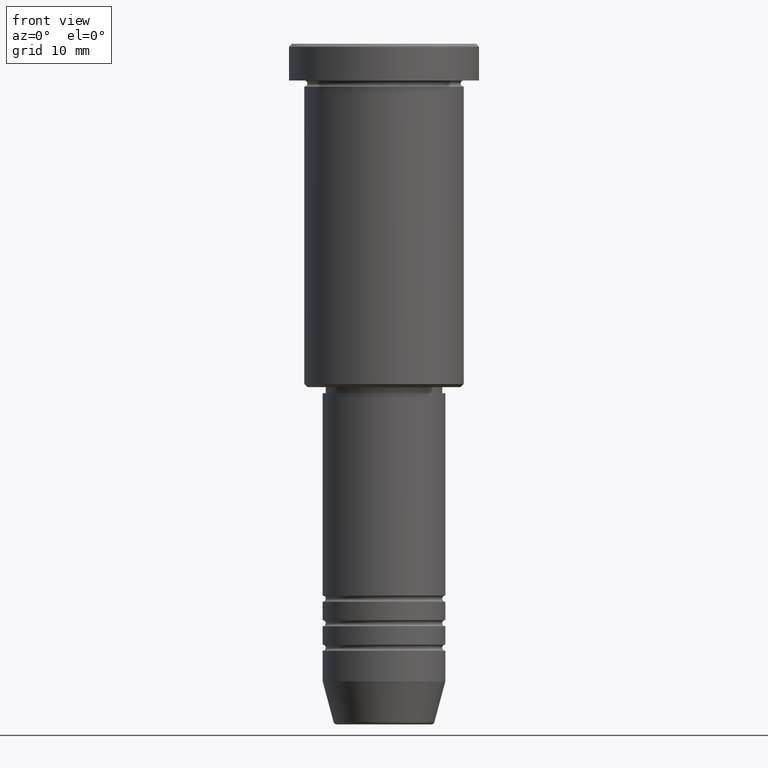
[diagram: clean part render]
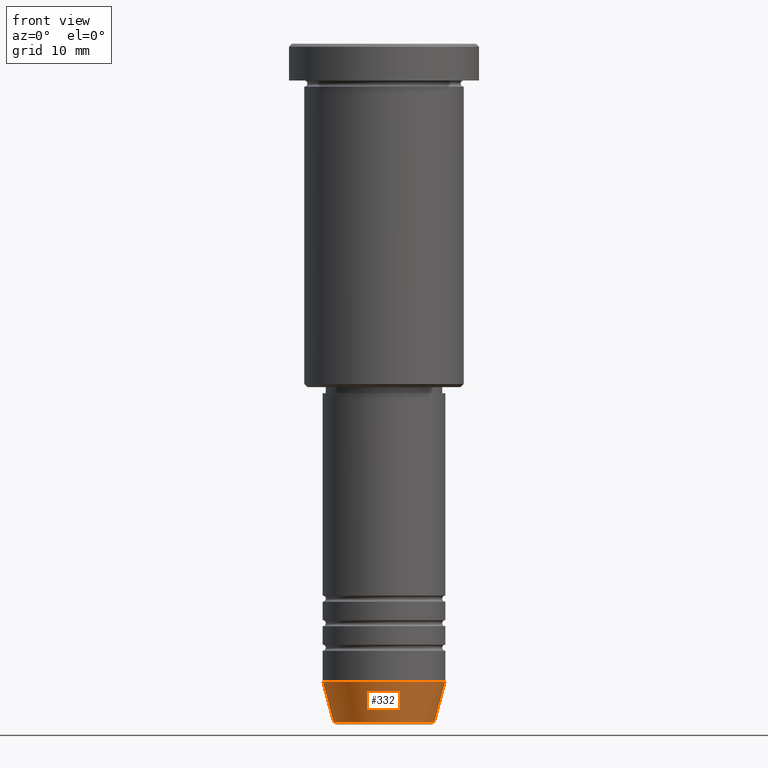
[diagram: same view with one face highlighted and labeled with its STEP entity id]
A machine part, front view. The second image highlights one B-rep face of the part: STEP entity #332.
In plain terms, the highlighted conical surface has half-angle 15 deg.
Its self-contained STEP definition (entity closure, byte-faithful):
#12 = AXIS2_PLACEMENT_3D ( 'NONE', #57, #347, #1088 ) ;
#43 = DIRECTION ( 'NONE',  ( 0.2588190451025210725, 0.000000000000000000, 0.9659258262890680902 ) ) ;
#49 = VERTEX_POINT ( 'NONE', #344 ) ;
#53 = CARTESIAN_POINT ( 'NONE',  ( -8.223655072137189492, 1.115877042642912054E-15, -110.6294095225512848 ) ) ;
#57 = CARTESIAN_POINT ( 'NONE',  ( 0.000000000000000000, 0.000000000000000000, -110.6294095225512848 ) ) ;
#215 = FACE_OUTER_BOUND ( 'NONE', #819, .T. ) ;
#235 = ORIENTED_EDGE ( 'NONE', *, *, #370, .T. ) ;
#290 = VERTEX_POINT ( 'NONE', #53 ) ;
#308 = CARTESIAN_POINT ( 'NONE',  ( 10.00000000000000000, 0.000000000000000000, -104.0000000000000142 ) ) ;
#310 = EDGE_CURVE ( 'NONE', #49, #589, #1154, .T. ) ;
#314 = CARTESIAN_POINT ( 'NONE',  ( 0.000000000000000000, 0.000000000000000000, -104.0000000000000142 ) ) ;
#332 = ADVANCED_FACE ( 'NONE', ( #215 ), #764, .T. ) ;
#344 = CARTESIAN_POINT ( 'NONE',  ( -10.00000000000000000, 1.224646799147353256E-15, -104.0000000000000142 ) ) ;
#347 = DIRECTION ( 'NONE',  ( -0.000000000000000000, -0.000000000000000000, 1.000000000000000000 ) ) ;
#349 = EDGE_CURVE ( 'NONE', #290, #49, #392, .T. ) ;
#358 = AXIS2_PLACEMENT_3D ( 'NONE', #1137, #659, #655 ) ;
#370 = EDGE_CURVE ( 'NONE', #965, #589, #1022, .T. ) ;
#392 = LINE ( 'NONE', #940, #744 ) ;
#493 = CARTESIAN_POINT ( 'NONE',  ( 10.00000000000000000, 0.000000000000000000, -104.0000000000000142 ) ) ;
#582 = AXIS2_PLACEMENT_3D ( 'NONE', #314, #681, #591 ) ;
#589 = VERTEX_POINT ( 'NONE', #308 ) ;
#591 = DIRECTION ( 'NONE',  ( 1.000000000000000000, 0.000000000000000000, 0.000000000000000000 ) ) ;
#604 = ORIENTED_EDGE ( 'NONE', *, *, #686, .T. ) ;
#655 = DIRECTION ( 'NONE',  ( 1.000000000000000000, 0.000000000000000000, 0.000000000000000000 ) ) ;
#659 = DIRECTION ( 'NONE',  ( -0.000000000000000000, -0.000000000000000000, 1.000000000000000000 ) ) ;
#681 = DIRECTION ( 'NONE',  ( -0.000000000000000000, -0.000000000000000000, 1.000000000000000000 ) ) ;
#686 = EDGE_CURVE ( 'NONE', #290, #965, #1000, .T. ) ;
#744 = VECTOR ( 'NONE', #746, 1000.000000000000114 ) ;
#746 = DIRECTION ( 'NONE',  ( -0.2588190451025210725, 3.169619151431769255E-17, 0.9659258262890680902 ) ) ;
#764 = CONICAL_SURFACE ( 'NONE', #582, 10.00000000000000000, 0.2617993877991497964 ) ;
#819 = EDGE_LOOP ( 'NONE', ( #903, #604, #235, #1125 ) ) ;
#903 = ORIENTED_EDGE ( 'NONE', *, *, #349, .F. ) ;
#940 = CARTESIAN_POINT ( 'NONE',  ( -10.00000000000000000, 1.224646799147353256E-15, -104.0000000000000142 ) ) ;
#948 = CARTESIAN_POINT ( 'NONE',  ( 8.223655072137189492, 0.000000000000000000, -110.6294095225512848 ) ) ;
#965 = VERTEX_POINT ( 'NONE', #948 ) ;
#1000 = CIRCLE ( 'NONE', #12, 8.223655072137189492 ) ;
#1022 = LINE ( 'NONE', #493, #1111 ) ;
#1088 = DIRECTION ( 'NONE',  ( 1.000000000000000000, 0.000000000000000000, 0.000000000000000000 ) ) ;
#1111 = VECTOR ( 'NONE', #43, 1000.000000000000114 ) ;
#1125 = ORIENTED_EDGE ( 'NONE', *, *, #310, .F. ) ;
#1137 = CARTESIAN_POINT ( 'NONE',  ( 0.000000000000000000, 0.000000000000000000, -104.0000000000000142 ) ) ;
#1154 = CIRCLE ( 'NONE', #358, 10.00000000000000000 ) ;